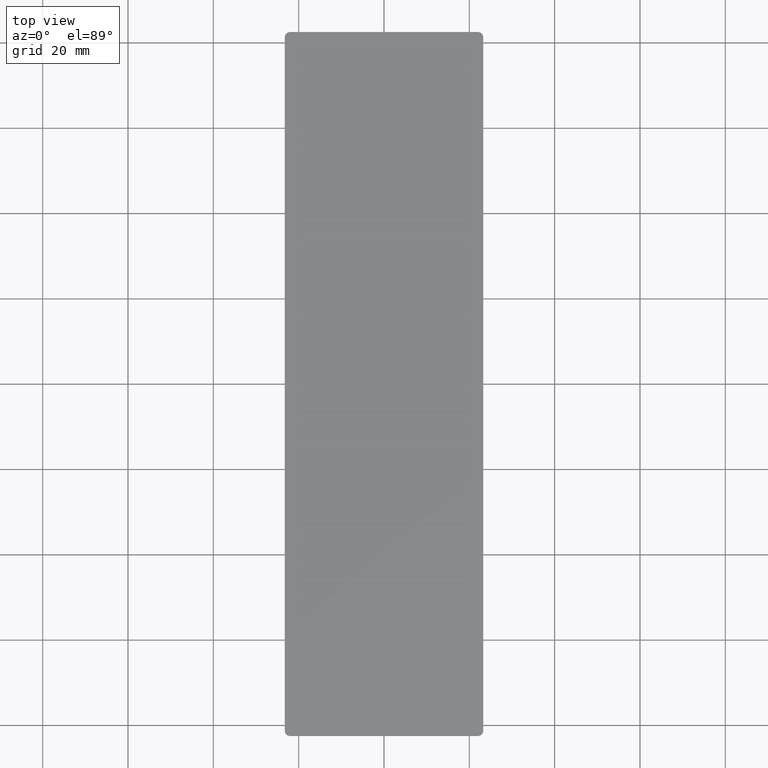
[diagram: clean part render]
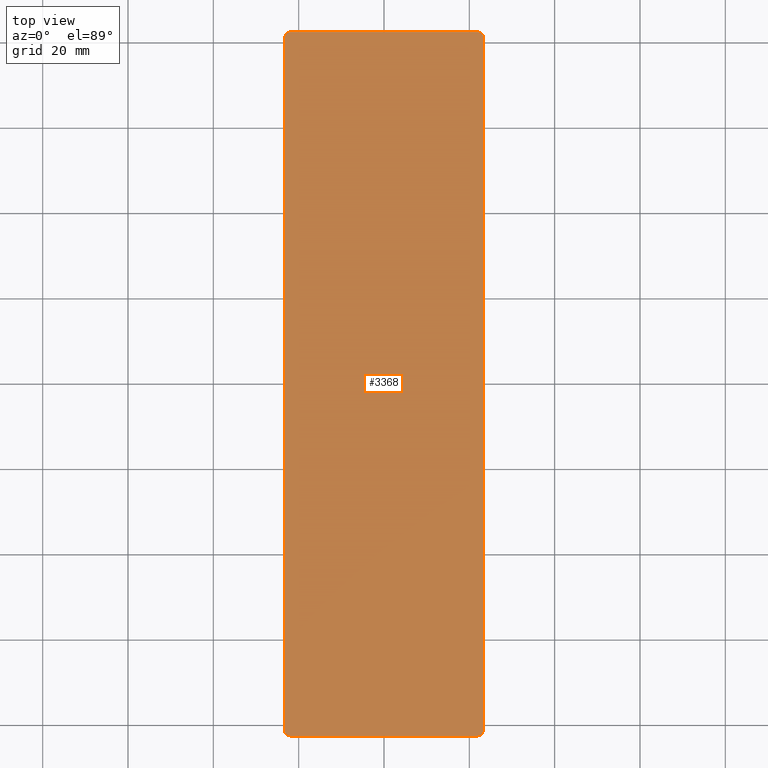
[diagram: same view with one face highlighted and labeled with its STEP entity id]
A machine part, top view. The second image highlights one B-rep face of the part: STEP entity #3368.
In plain terms, the highlighted planar face has unit normal (-0, 0, 1).
Its self-contained STEP definition (entity closure, byte-faithful):
#242 = FACE_OUTER_BOUND ( 'NONE', #5720, .T. ) ;
#247 = EDGE_CURVE ( 'NONE', #266, #656, #10670, .T. ) ;
#257 = VERTEX_POINT ( 'NONE', #5683 ) ;
#266 = VERTEX_POINT ( 'NONE', #3608 ) ;
#430 = AXIS2_PLACEMENT_3D ( 'NONE', #6801, #2718, #12000 ) ;
#656 = VERTEX_POINT ( 'NONE', #6374 ) ;
#740 = AXIS2_PLACEMENT_3D ( 'NONE', #4752, #1729, #8916 ) ;
#838 = AXIS2_PLACEMENT_3D ( 'NONE', #5424, #3292, #4345 ) ;
#853 = EDGE_CURVE ( 'NONE', #3313, #656, #12244, .T. ) ;
#907 = EDGE_CURVE ( 'NONE', #257, #1072, #6846, .T. ) ;
#912 = LINE ( 'NONE', #9816, #13224 ) ;
#978 = EDGE_CURVE ( 'NONE', #9540, #9694, #912, .T. ) ;
#1072 = VERTEX_POINT ( 'NONE', #10536 ) ;
#1729 = DIRECTION ( 'NONE',  ( -0.0000000000000000000, 0.0000000000000000000, 1.000000000000000000 ) ) ;
#2032 = CARTESIAN_POINT ( 'NONE',  ( -23.25000000000001400, 81.30000000000001100, 1.500000000000000000 ) ) ;
#2418 = LINE ( 'NONE', #10803, #12322 ) ;
#2662 = PLANE ( 'NONE',  #740 ) ;
#2718 = DIRECTION ( 'NONE',  ( -0.0000000000000000000, 0.0000000000000000000, 1.000000000000000000 ) ) ;
#3292 = DIRECTION ( 'NONE',  ( -0.0000000000000000000, 0.0000000000000000000, 1.000000000000000000 ) ) ;
#3313 = VERTEX_POINT ( 'NONE', #3751 ) ;
#3368 = ADVANCED_FACE ( 'NONE', ( #242 ), #2662, .T. ) ;
#3493 = DIRECTION ( 'NONE',  ( -0.0000000000000000000, 0.0000000000000000000, 1.000000000000000000 ) ) ;
#3608 = CARTESIAN_POINT ( 'NONE',  ( -22.05000000000001500, 82.50000000000001400, 1.500000000000000000 ) ) ;
#3633 = ORIENTED_EDGE ( 'NONE', *, *, #7375, .F. ) ;
#3751 = CARTESIAN_POINT ( 'NONE',  ( 23.24999999999998600, 81.30000000000001100, 1.500000000000000000 ) ) ;
#4345 = DIRECTION ( 'NONE',  ( 1.000000000000000000, 0.0000000000000000000, 0.0000000000000000000 ) ) ;
#4523 = DIRECTION ( 'NONE',  ( 1.000000000000000000, 0.0000000000000000000, 0.0000000000000000000 ) ) ;
#4644 = CARTESIAN_POINT ( 'NONE',  ( -23.24999999999999300, -81.29999999999998300, 1.500000000000000000 ) ) ;
#4752 = CARTESIAN_POINT ( 'NONE',  ( 0.0000000000000000000, 0.0000000000000000000, 1.500000000000000000 ) ) ;
#4778 = VECTOR ( 'NONE', #7494, 1000.000000000000000 ) ;
#4934 = VERTEX_POINT ( 'NONE', #6791 ) ;
#5424 = CARTESIAN_POINT ( 'NONE',  ( -22.05000000000001500, 81.30000000000001100, 1.500000000000000000 ) ) ;
#5683 = CARTESIAN_POINT ( 'NONE',  ( -22.04999999999999400, -82.49999999999998600, 1.500000000000000000 ) ) ;
#5720 = EDGE_LOOP ( 'NONE', ( #11799, #6051, #5950, #9781, #13194, #11626, #3633, #7966 ) ) ;
#5950 = ORIENTED_EDGE ( 'NONE', *, *, #978, .T. ) ;
#6051 = ORIENTED_EDGE ( 'NONE', *, *, #7268, .T. ) ;
#6374 = CARTESIAN_POINT ( 'NONE',  ( 22.04999999999997200, 82.50000000000001400, 1.500000000000000000 ) ) ;
#6505 = CARTESIAN_POINT ( 'NONE',  ( -23.24999999999999300, -82.49999999999998600, 1.500000000000000000 ) ) ;
#6791 = CARTESIAN_POINT ( 'NONE',  ( 23.25000000000000400, -81.29999999999998300, 1.500000000000000000 ) ) ;
#6801 = CARTESIAN_POINT ( 'NONE',  ( -22.04999999999999400, -81.29999999999998300, 1.500000000000000000 ) ) ;
#6846 = LINE ( 'NONE', #6505, #4778 ) ;
#6895 = DIRECTION ( 'NONE',  ( 1.051347561198065000E-016, -1.000000000000000000, 0.0000000000000000000 ) ) ;
#7268 = EDGE_CURVE ( 'NONE', #266, #9540, #12654, .T. ) ;
#7375 = EDGE_CURVE ( 'NONE', #3313, #4934, #2418, .T. ) ;
#7494 = DIRECTION ( 'NONE',  ( 1.000000000000000000, 0.0000000000000000000, 0.0000000000000000000 ) ) ;
#7704 = CARTESIAN_POINT ( 'NONE',  ( -23.25000000000001400, 82.50000000000001400, 1.500000000000000000 ) ) ;
#7817 = AXIS2_PLACEMENT_3D ( 'NONE', #10956, #11091, #12017 ) ;
#7959 = AXIS2_PLACEMENT_3D ( 'NONE', #12512, #3493, #9638 ) ;
#7966 = ORIENTED_EDGE ( 'NONE', *, *, #853, .T. ) ;
#8848 = DIRECTION ( 'NONE',  ( 1.261617073437677800E-016, -1.000000000000000000, 0.0000000000000000000 ) ) ;
#8916 = DIRECTION ( 'NONE',  ( 1.000000000000000000, 0.0000000000000000000, 0.0000000000000000000 ) ) ;
#9540 = VERTEX_POINT ( 'NONE', #2032 ) ;
#9638 = DIRECTION ( 'NONE',  ( 1.000000000000000000, 0.0000000000000000000, 0.0000000000000000000 ) ) ;
#9694 = VERTEX_POINT ( 'NONE', #4644 ) ;
#9735 = VECTOR ( 'NONE', #4523, 1000.000000000000000 ) ;
#9781 = ORIENTED_EDGE ( 'NONE', *, *, #11383, .T. ) ;
#9816 = CARTESIAN_POINT ( 'NONE',  ( -23.25000000000001400, 82.50000000000001400, 1.500000000000000000 ) ) ;
#10536 = CARTESIAN_POINT ( 'NONE',  ( 22.04999999999998600, -82.49999999999998600, 1.500000000000000000 ) ) ;
#10670 = LINE ( 'NONE', #7704, #9735 ) ;
#10803 = CARTESIAN_POINT ( 'NONE',  ( 23.24999999999998600, 82.50000000000001400, 1.500000000000000000 ) ) ;
#10956 = CARTESIAN_POINT ( 'NONE',  ( 22.05000000000000400, -81.29999999999998300, 1.500000000000000000 ) ) ;
#11012 = CIRCLE ( 'NONE', #7817, 1.199999999999999700 ) ;
#11091 = DIRECTION ( 'NONE',  ( -0.0000000000000000000, 0.0000000000000000000, 1.000000000000000000 ) ) ;
#11383 = EDGE_CURVE ( 'NONE', #9694, #257, #11810, .T. ) ;
#11626 = ORIENTED_EDGE ( 'NONE', *, *, #11866, .T. ) ;
#11799 = ORIENTED_EDGE ( 'NONE', *, *, #247, .F. ) ;
#11810 = CIRCLE ( 'NONE', #430, 1.199999999999999700 ) ;
#11866 = EDGE_CURVE ( 'NONE', #1072, #4934, #11012, .T. ) ;
#12000 = DIRECTION ( 'NONE',  ( 1.000000000000000000, 0.0000000000000000000, 0.0000000000000000000 ) ) ;
#12017 = DIRECTION ( 'NONE',  ( 1.000000000000000000, 0.0000000000000000000, 0.0000000000000000000 ) ) ;
#12244 = CIRCLE ( 'NONE', #7959, 1.199999999999999700 ) ;
#12322 = VECTOR ( 'NONE', #6895, 1000.000000000000000 ) ;
#12512 = CARTESIAN_POINT ( 'NONE',  ( 22.04999999999998600, 81.30000000000001100, 1.500000000000000000 ) ) ;
#12654 = CIRCLE ( 'NONE', #838, 1.199999999999999700 ) ;
#13194 = ORIENTED_EDGE ( 'NONE', *, *, #907, .T. ) ;
#13224 = VECTOR ( 'NONE', #8848, 1000.000000000000000 ) ;